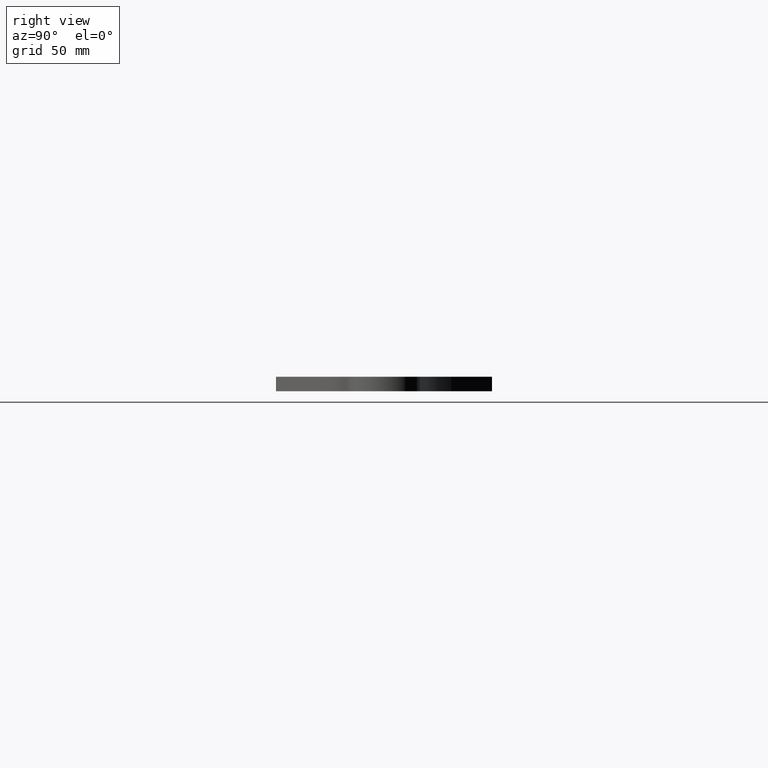
[diagram: clean part render]
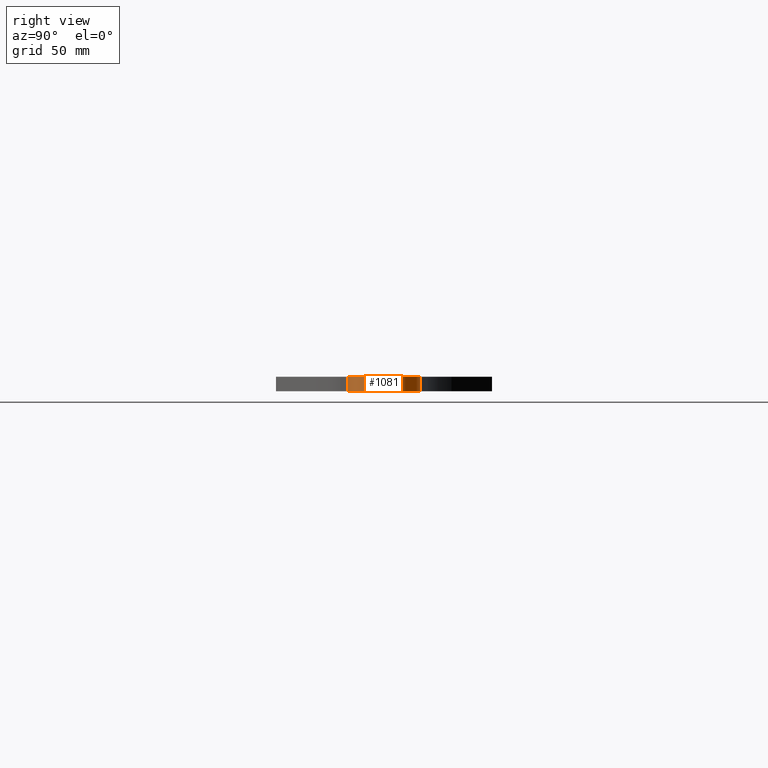
[diagram: same view with one face highlighted and labeled with its STEP entity id]
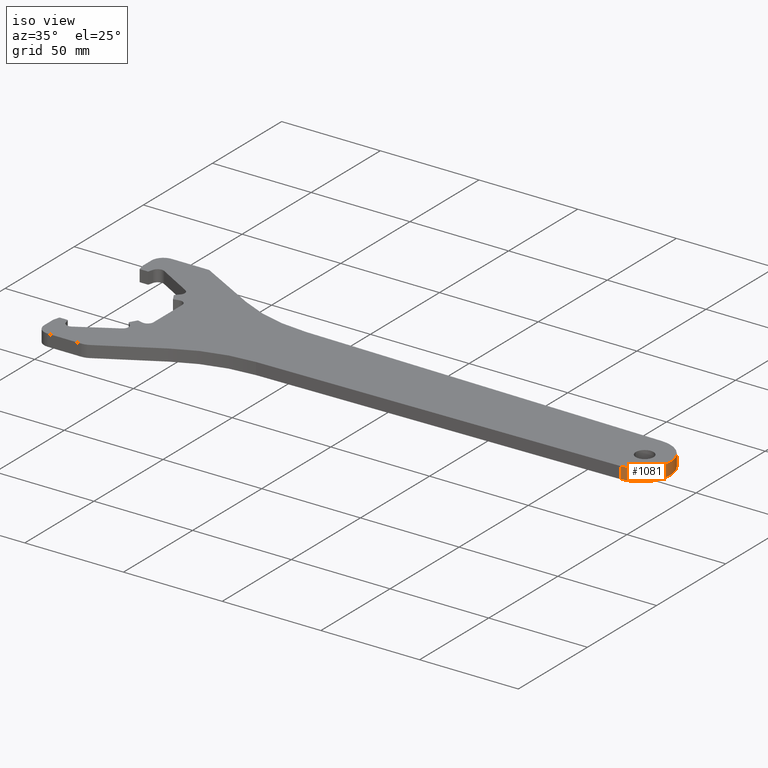
[diagram: same view with one face highlighted and labeled with its STEP entity id]
A machine part, right view. The second image highlights one B-rep face of the part: STEP entity #1081.
A second angle (iso view) of the same face is appended — the face is thin or edge-on in the first view.
In plain terms, the highlighted cylindrical surface (edge-blend (fillet) strip) has radius 15 mm, axis along (0, 0, -1).
Its self-contained STEP definition (entity closure, byte-faithful):
#5 = DIRECTION ( 'NONE',  ( -0.0000000000000000000, -0.0000000000000000000, -1.000000000000000000 ) ) ;
#68 = DIRECTION ( 'NONE',  ( -1.000000000000000000, 0.0000000000000000000, 0.0000000000000000000 ) ) ;
#161 = CARTESIAN_POINT ( 'NONE',  ( 272.2333643259391900, -14.99791652477024000, 6.000000000000000000 ) ) ;
#168 = CARTESIAN_POINT ( 'NONE',  ( 271.9833643269999500, 0.0000000000000000000, 6.000000000000000000 ) ) ;
#281 = CIRCLE ( 'NONE', #1362, 14.99999999999995700 ) ;
#288 = DIRECTION ( 'NONE',  ( -1.000000000000000000, 0.0000000000000000000, 0.0000000000000000000 ) ) ;
#309 = ORIENTED_EDGE ( 'NONE', *, *, #348, .F. ) ;
#314 = CARTESIAN_POINT ( 'NONE',  ( 271.9833643269999500, 0.0000000000000000000, 6.000000000000000000 ) ) ;
#326 = CARTESIAN_POINT ( 'NONE',  ( 272.2333643272491500, -14.99791652196641500, 3.000000000000000000 ) ) ;
#348 = EDGE_CURVE ( 'NONE', #688, #1409, #907, .T. ) ;
#448 = DIRECTION ( 'NONE',  ( -0.0000000000000000000, -0.0000000000000000000, 1.000000000000000000 ) ) ;
#522 = EDGE_LOOP ( 'NONE', ( #1246, #867, #309, #1427 ) ) ;
#588 = LINE ( 'NONE', #1514, #1197 ) ;
#656 = DIRECTION ( 'NONE',  ( -0.0000000000000000000, -0.0000000000000000000, 1.000000000000000000 ) ) ;
#678 = DIRECTION ( 'NONE',  ( 0.0000000000000000000, 0.0000000000000000000, -1.000000000000000000 ) ) ;
#688 = VERTEX_POINT ( 'NONE', #1051 ) ;
#703 = AXIS2_PLACEMENT_3D ( 'NONE', #314, #678, #68 ) ;
#809 = EDGE_CURVE ( 'NONE', #989, #1386, #588, .T. ) ;
#821 = FACE_OUTER_BOUND ( 'NONE', #522, .T. ) ;
#867 = ORIENTED_EDGE ( 'NONE', *, *, #1436, .F. ) ;
#907 = LINE ( 'NONE', #326, #1542 ) ;
#911 = CIRCLE ( 'NONE', #1014, 14.99999999999995700 ) ;
#937 = EDGE_CURVE ( 'NONE', #688, #1386, #281, .T. ) ;
#989 = VERTEX_POINT ( 'NONE', #1310 ) ;
#1014 = AXIS2_PLACEMENT_3D ( 'NONE', #168, #1041, #288 ) ;
#1041 = DIRECTION ( 'NONE',  ( -0.0000000000000000000, -0.0000000000000000000, 1.000000000000000000 ) ) ;
#1051 = CARTESIAN_POINT ( 'NONE',  ( 272.2333643271052800, -14.99791652198352700, 0.0000000000000000000 ) ) ;
#1081 = ADVANCED_FACE ( 'NONE', ( #821 ), #1370, .T. ) ;
#1197 = VECTOR ( 'NONE', #5, 1000.000000000000000 ) ;
#1246 = ORIENTED_EDGE ( 'NONE', *, *, #809, .F. ) ;
#1310 = CARTESIAN_POINT ( 'NONE',  ( 272.2333643258145900, 14.99791652478703700, 6.000000000000000000 ) ) ;
#1353 = CARTESIAN_POINT ( 'NONE',  ( 272.2333643269806200, 14.99791652200032000, -2.168404344971008900E-016 ) ) ;
#1362 = AXIS2_PLACEMENT_3D ( 'NONE', #1429, #656, #1561 ) ;
#1370 = CYLINDRICAL_SURFACE ( 'NONE', #703, 14.99999999999995700 ) ;
#1386 = VERTEX_POINT ( 'NONE', #1353 ) ;
#1409 = VERTEX_POINT ( 'NONE', #161 ) ;
#1427 = ORIENTED_EDGE ( 'NONE', *, *, #937, .T. ) ;
#1429 = CARTESIAN_POINT ( 'NONE',  ( 271.9833643269999500, 0.0000000000000000000, 0.0000000000000000000 ) ) ;
#1436 = EDGE_CURVE ( 'NONE', #1409, #989, #911, .T. ) ;
#1514 = CARTESIAN_POINT ( 'NONE',  ( 272.2333643269999500, 14.99791652200000100, 3.000000000000000000 ) ) ;
#1542 = VECTOR ( 'NONE', #448, 1000.000000000000000 ) ;
#1561 = DIRECTION ( 'NONE',  ( -1.000000000000000000, 2.664535259100375700E-015, 0.0000000000000000000 ) ) ;